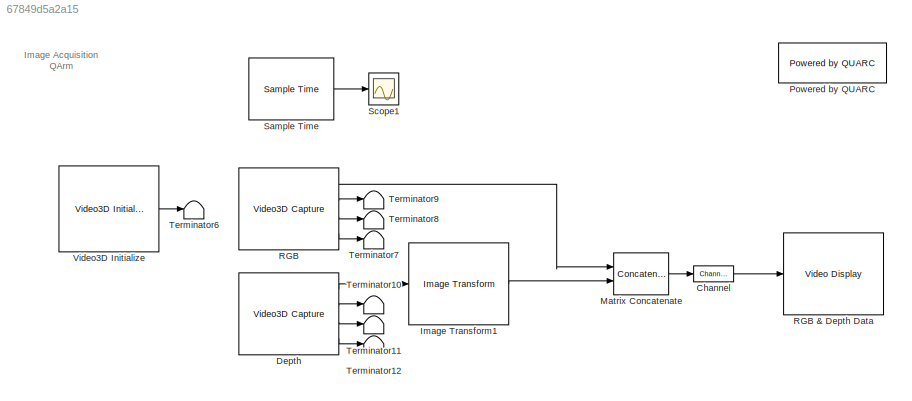
MODEL slx_67849d5a2a15
KIND model
CONFIG AbsTol = auto
CONFIG EnableMultiTasking = on
CONFIG FixedStep = 1/500
CONFIG MaxStep = auto
CONFIG MinStep = auto
CONFIG RelTol = 1e-3
CONFIG SampleTimeConstraint = Unconstrained
CONFIG SolverName = ode4
CONFIG StartTime = 0.0
CONFIG StopTime = inf
BLOCK [Reference] Channel  REF=quarc_library/Signal Routing/Channel
  Ports = [1, 1]
  SourceBlock = quarc_library/Signal Routing/Channel
  SourceProductName = QUARC Targets
  SourceType = Channel
BLOCK [Reference] Depth  REF=quarc_library/Multimedia/Video3D Capture
  Ports = [0, 4]
  SourceBlock = quarc_library/Multimedia/Video3D Capture
  SourceProductName = QUARC Targets
  SourceType = Video3D Capture
  UserDataPersistent = on
BLOCK [Reference] Image Transform1  REF=quarc_library/Image Processing/Generic/Image Transform
  AttributesFormatString = (%<algorithm>)
  Ports = [1, 1]
  SourceBlock = quarc_library/Image Processing/Generic/Image Transform
  SourceProductName = QUARC Targets
  SourceType = Image Transform
BLOCK [Concatenate] Matrix Concatenate
  ConcatenateDimension = 2
  Mode = Multidimensional array
  Ports = [2, 1]
BLOCK [Reference] Powered by QUARC  REF=quarc_library/Logos/Powered by QUARC
  Ports = []
  SourceBlock = quarc_library/Logos/Powered by QUARC
  SourceProductName = QUARC Targets
  SourceType = Powered by QUARC
BLOCK [Reference] RGB  REF=quarc_library/Multimedia/Video3D Capture
  Ports = [0, 4]
  SourceBlock = quarc_library/Multimedia/Video3D Capture
  SourceProductName = QUARC Targets
  SourceType = Video3D Capture
  UserDataPersistent = on
BLOCK [Reference] RGB & Depth Data  REF=quarc_library/Multimedia/Video Display
  Ports = [1]
  SourceBlock = quarc_library/Multimedia/Video Display
  SourceProductName = QUARC Targets
  SourceType = Video Display
  Tag = ImageAcquisition/RGB & Depth Data
  UserDataPersistent = on
BLOCK [Reference] Sample Time  REF=quarc_library/Sources/Time/Sample Time
  Ports = [0, 1]
  Priority = -99
  SourceBlock = quarc_library/Sources/Time/Sample Time
  SourceProductName = QUARC Targets
  SourceType = Sample Time
BLOCK [Scope] Scope1
  Floating = off
  NumInputPorts = 1
  Ports = [1]
  ScopeSpecificationString = Simulink.scopes.TimeScopeBlockCfg('CurrentConfiguration', extmgr.ConfigurationSet(extmgr.Configuration('Core','General UI',true),extmgr.Configuration('Core','Source UI',true),extmgr.Configuration('Sources','WiredSimulink',true),extmgr.Configuration('Visuals','Time Domain',true,'SerializedDisplays',{struct('MinYLimReal','-0.01344','MaxYLimReal','0.45223','YLabelReal','','MinYLimMag','0.00000','MaxY...<+1383ch>
BLOCK [Terminator] Terminator10
BLOCK [Terminator] Terminator11
BLOCK [Terminator] Terminator12
BLOCK [Terminator] Terminator6
BLOCK [Terminator] Terminator7
BLOCK [Terminator] Terminator8
BLOCK [Terminator] Terminator9
BLOCK [Reference] Video3D Initialize  REF=quarc_library/Multimedia/Video3D Initialize
  Ports = [0, 1]
  SourceBlock = quarc_library/Multimedia/Video3D Initialize
  SourceProductName = QUARC Targets
  SourceType = Video3D Initialize
ANNOTATION (root): Image Acquisition QArm
LINE Channel:1 -> RGB & Depth Data:1
LINE Depth:1 -> Image Transform1:1
LINE Depth:2 -> Terminator10:1
LINE Depth:3 -> Terminator11:1
LINE Depth:4 -> Terminator12:1
LINE Image Transform1:1 -> Matrix Concatenate:2
LINE Matrix Concatenate:1 -> Channel:1
LINE RGB:1 -> Matrix Concatenate:1
LINE RGB:2 -> Terminator9:1
LINE RGB:3 -> Terminator8:1
LINE RGB:4 -> Terminator7:1
LINE Sample Time:1 -> Scope1:1
LINE Video3D Initialize:1 -> Terminator6:1
